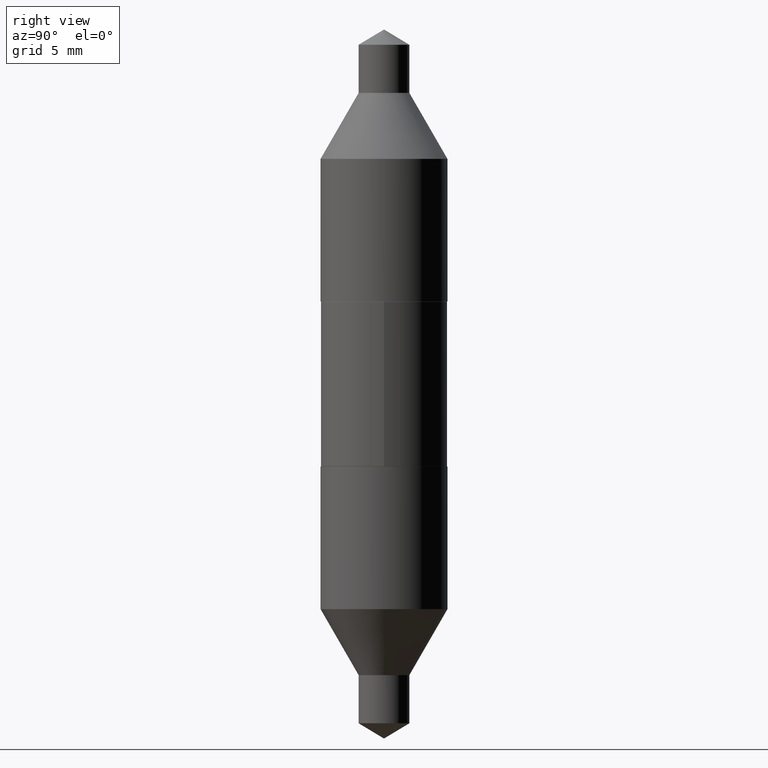
[diagram: clean part render]
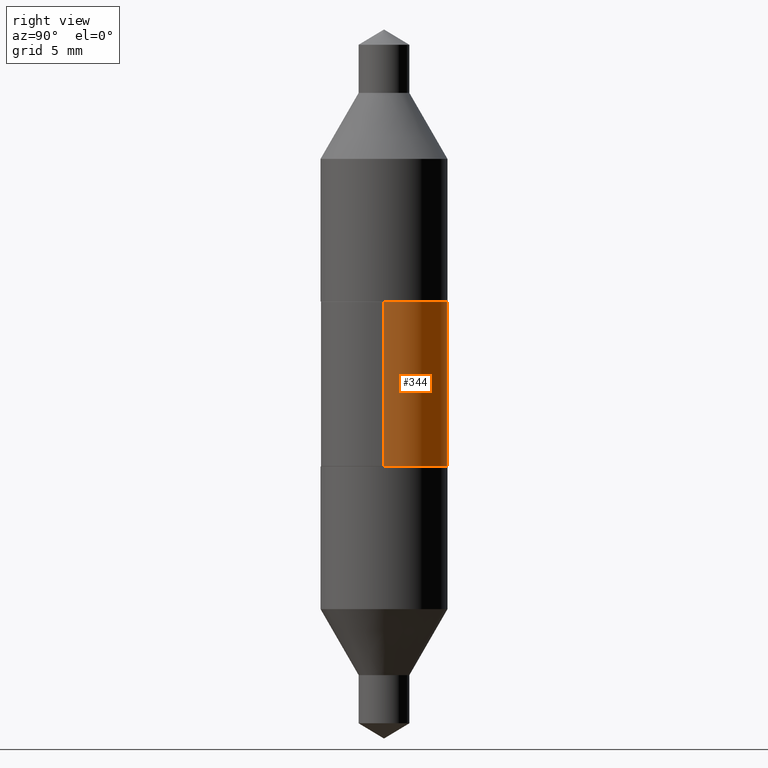
[diagram: same view with one face highlighted and labeled with its STEP entity id]
A machine part, right view. The second image highlights one B-rep face of the part: STEP entity #344.
In plain terms, the highlighted cylindrical surface (partial cylindrical patch) has radius 5 mm, axis along (-0, 0, 1).
Its self-contained STEP definition (entity closure, byte-faithful):
#35 = DIRECTION ( 'NONE',  ( -2.445468806185136597E-29, 3.491481338843145583E-15, 1.000000000000000000 ) ) ;
#57 = VERTEX_POINT ( 'NONE', #433 ) ;
#64 = EDGE_CURVE ( 'NONE', #65, #57, #280, .T. ) ;
#65 = VERTEX_POINT ( 'NONE', #483 ) ;
#72 = ORIENTED_EDGE ( 'NONE', *, *, #64, .T. ) ;
#81 = AXIS2_PLACEMENT_3D ( 'NONE', #521, #35, #496 ) ;
#87 = CARTESIAN_POINT ( 'NONE',  ( 0.1968500000000000527, -2.266669685176966220E-15, -0.2555000000000003380 ) ) ;
#100 = CARTESIAN_POINT ( 'NONE',  ( 0.000000000000000000, 0.000000000000000000, 0.000000000000000000 ) ) ;
#114 = ORIENTED_EDGE ( 'NONE', *, *, #137, .F. ) ;
#131 = CARTESIAN_POINT ( 'NONE',  ( 0.1968500000000000527, -1.374596203102542003E-15, 9.598753983154302260E-30 ) ) ;
#137 = EDGE_CURVE ( 'NONE', #332, #380, #193, .T. ) ;
#138 = CARTESIAN_POINT ( 'NONE',  ( 6.248172799803031437E-30, -8.920734820744248085E-16, -0.2555000000000003380 ) ) ;
#141 = DIRECTION ( 'NONE',  ( -2.445468806185136597E-29, 3.491481338843145583E-15, 1.000000000000000000 ) ) ;
#149 = CARTESIAN_POINT ( 'NONE',  ( -0.1968500000000000527, 1.398703375343757590E-15, -9.682923725166785079E-30 ) ) ;
#150 = CARTESIAN_POINT ( 'NONE',  ( 0.1968500000000000527, -4.825227210281171943E-16, 0.2555000000000003380 ) ) ;
#155 = EDGE_CURVE ( 'NONE', #380, #57, #654, .T. ) ;
#193 = LINE ( 'NONE', #131, #240 ) ;
#234 = EDGE_LOOP ( 'NONE', ( #439, #72, #536, #114 ) ) ;
#240 = VECTOR ( 'NONE', #359, 39.37007874015748143 ) ;
#279 = AXIS2_PLACEMENT_3D ( 'NONE', #138, #141, #464 ) ;
#280 = LINE ( 'NONE', #149, #346 ) ;
#311 = CYLINDRICAL_SURFACE ( 'NONE', #377, 0.1968500000000000527 ) ;
#332 = VERTEX_POINT ( 'NONE', #87 ) ;
#344 = ADVANCED_FACE ( 'NONE', ( #624 ), #311, .T. ) ;
#346 = VECTOR ( 'NONE', #696, 39.37007874015748143 ) ;
#359 = DIRECTION ( 'NONE',  ( -2.445468806185136877E-29, 3.491481338843145188E-15, 1.000000000000000000 ) ) ;
#377 = AXIS2_PLACEMENT_3D ( 'NONE', #100, #676, #474 ) ;
#380 = VERTEX_POINT ( 'NONE', #150 ) ;
#413 = EDGE_CURVE ( 'NONE', #332, #65, #421, .T. ) ;
#421 = CIRCLE ( 'NONE', #279, 0.1968500000000000527 ) ;
#433 = CARTESIAN_POINT ( 'NONE',  ( -0.1968500000000000527, 1.398703375343757590E-15, 0.2555000000000003380 ) ) ;
#439 = ORIENTED_EDGE ( 'NONE', *, *, #413, .T. ) ;
#464 = DIRECTION ( 'NONE',  ( 1.000000000000000000, -6.982962677686266711E-15, 0.000000000000000000 ) ) ;
#474 = DIRECTION ( 'NONE',  ( 1.000000000000000000, -6.982962677686266711E-15, 4.876176775795935793E-29 ) ) ;
#483 = CARTESIAN_POINT ( 'NONE',  ( -0.1968500000000000527, 5.066298932693327820E-16, -0.2555000000000003380 ) ) ;
#496 = DIRECTION ( 'NONE',  ( 1.000000000000000000, -6.982962677686266711E-15, 0.000000000000000000 ) ) ;
#521 = CARTESIAN_POINT ( 'NONE',  ( -6.248172799803031437E-30, 8.920734820744248085E-16, 0.2555000000000003380 ) ) ;
#536 = ORIENTED_EDGE ( 'NONE', *, *, #155, .F. ) ;
#624 = FACE_OUTER_BOUND ( 'NONE', #234, .T. ) ;
#654 = CIRCLE ( 'NONE', #81, 0.1968500000000000527 ) ;
#676 = DIRECTION ( 'NONE',  ( -2.445468806185136597E-29, 3.491481338843145583E-15, 1.000000000000000000 ) ) ;
#696 = DIRECTION ( 'NONE',  ( -2.445468806185136877E-29, 3.491481338843145188E-15, 1.000000000000000000 ) ) ;